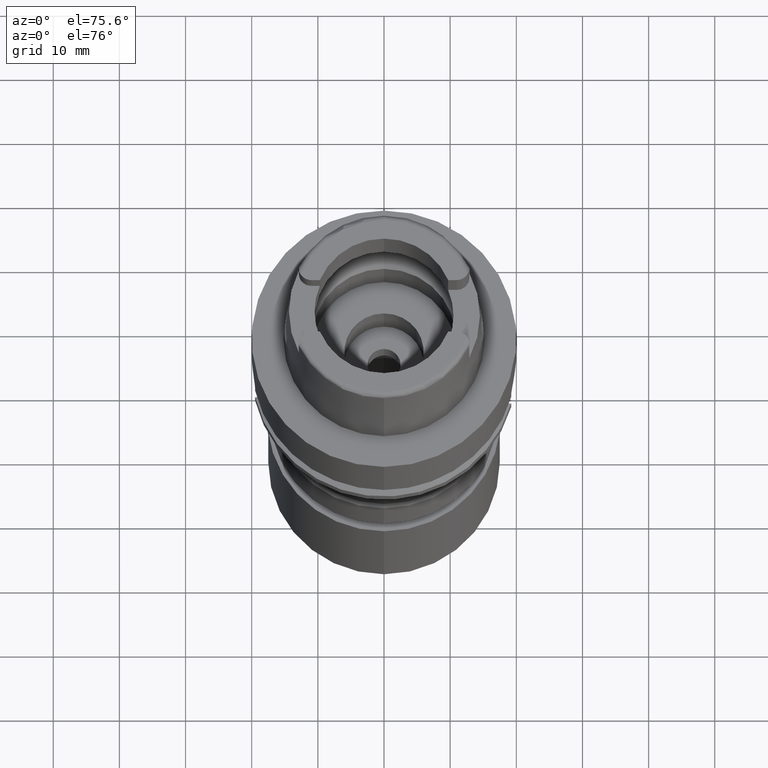
[diagram: clean part render]
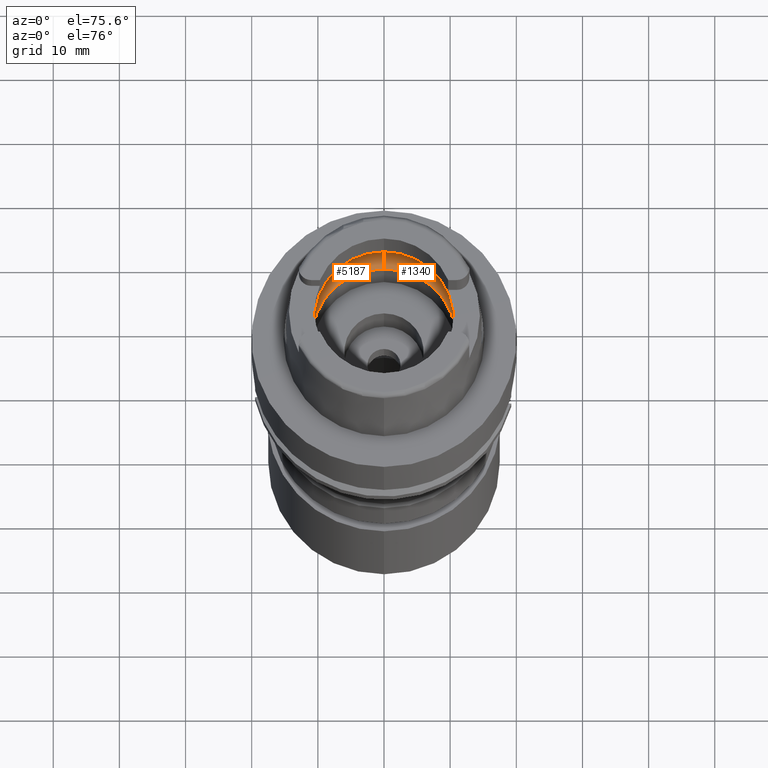
[diagram: same view with one multi-face feature highlighted, each face labeled with its STEP entity id]
A machine part, auxiliary view. The highlighted faces form ONE feature: a constant-radius fillet chain: 2 tangent blend faces with common blend radius 5 mm. The faces share edges in the B-rep.
Their STEP definitions:
[1] entity #1340 (Torus):
#114 = DIRECTION ( 'NONE',  ( 0.0000000000000000000, 0.0000000000000000000, 1.000000000000000000 ) ) ;
#136 = CARTESIAN_POINT ( 'NONE',  ( 12.74455357708000491, -0.3736595956872570956, 3.699999999999999289 ) ) ;
#221 = DIRECTION ( 'NONE',  ( 0.0000000000000000000, -0.6299999999999791322, -0.7765951326141738997 ) ) ;
#260 = CARTESIAN_POINT ( 'NONE',  ( 0.0000000000000000000, -12.75000000000000000, 3.933312163512999504 ) ) ;
#313 = AXIS2_PLACEMENT_3D ( 'NONE', #484, #3448, #2582 ) ;
#351 = VERTEX_POINT ( 'NONE', #3696 ) ;
#378 = DIRECTION ( 'NONE',  ( 0.0000000000000000000, 1.000000000000000000, 0.0000000000000000000 ) ) ;
#438 = AXIS2_PLACEMENT_3D ( 'NONE', #992, #2217, #4707 ) ;
#471 = CARTESIAN_POINT ( 'NONE',  ( 12.70998420979999999, 1.009356917307999923, 3.933312163512999504 ) ) ;
#484 = CARTESIAN_POINT ( 'NONE',  ( 0.0000000000000000000, 7.750000000000000000, 3.933312163512999504 ) ) ;
#509 = CARTESIAN_POINT ( 'NONE',  ( 12.74455357708000136, 0.0000000000000000000, 3.700000000000000178 ) ) ;
#514 = CIRCLE ( 'NONE', #2693, 10.90000000000000036 ) ;
#565 = B_SPLINE_CURVE_WITH_KNOTS ( 'NONE', 3,
 ( #471, #2939, #5381, #4981, #2884, #1236 ),
 .UNSPECIFIED., .F., .F.,
 ( 4, 1, 1, 4 ),
 ( 0.0000000000000000000, 0.3333333333333000081, 0.6666666666667000474, 1.000000000000000000 ),
 .UNSPECIFIED. ) ;
#730 = EDGE_CURVE ( 'NONE', #1047, #3075, #1219, .T. ) ;
#782 = CARTESIAN_POINT ( 'NONE',  ( 12.74455357708000136, 0.0000000000000000000, 3.700000000000000178 ) ) ;
#992 = CARTESIAN_POINT ( 'NONE',  ( 0.0000000000000000000, 0.0000000000000000000, 3.933312163512999504 ) ) ;
#1047 = VERTEX_POINT ( 'NONE', #3209 ) ;
#1219 = CIRCLE ( 'NONE', #438, 12.75000000000000533 ) ;
#1221 = ORIENTED_EDGE ( 'NONE', *, *, #3295, .F. ) ;
#1236 = CARTESIAN_POINT ( 'NONE',  ( 12.74455357708000136, 0.0000000000000000000, 3.700000000000000178 ) ) ;
#1330 = EDGE_CURVE ( 'NONE', #2439, #3584, #3808, .T. ) ;
#1340 = ADVANCED_FACE ( 'NONE', ( #3822 ), #2485, .F. ) ;
#1400 = AXIS2_PLACEMENT_3D ( 'NONE', #4125, #2960, #378 ) ;
#1567 = EDGE_CURVE ( 'NONE', #2220, #1047, #4404, .T. ) ;
#1714 = ORIENTED_EDGE ( 'NONE', *, *, #3873, .F. ) ;
#1816 = VERTEX_POINT ( 'NONE', #4571 ) ;
#1822 = CARTESIAN_POINT ( 'NONE',  ( 0.0000000000000000000, 12.75000000000000000, 3.933312163512999504 ) ) ;
#1844 = AXIS2_PLACEMENT_3D ( 'NONE', #5118, #3013, #221 ) ;
#1945 = EDGE_CURVE ( 'NONE', #351, #2220, #565, .T. ) ;
#2217 = DIRECTION ( 'NONE',  ( 0.0000000000000000000, 0.0000000000000000000, -1.000000000000000000 ) ) ;
#2220 = VERTEX_POINT ( 'NONE', #782 ) ;
#2236 = CARTESIAN_POINT ( 'NONE',  ( 0.0000000000000000000, 0.0000000000000000000, 3.933312163512999504 ) ) ;
#2439 = VERTEX_POINT ( 'NONE', #5055 ) ;
#2485 = TOROIDAL_SURFACE ( 'NONE', #2672, 7.750000000000000000, 5.000000000000000000 ) ;
#2582 = DIRECTION ( 'NONE',  ( 0.0000000000000000000, 0.6299999999999791322, -0.7765951326141738997 ) ) ;
#2672 = AXIS2_PLACEMENT_3D ( 'NONE', #2236, #114, #5144 ) ;
#2693 = AXIS2_PLACEMENT_3D ( 'NONE', #3116, #2999, #5214 ) ;
#2884 = CARTESIAN_POINT ( 'NONE',  ( 12.74455357708000136, 0.1164895916570000134, 3.700000000000000178 ) ) ;
#2905 = ORIENTED_EDGE ( 'NONE', *, *, #1945, .F. ) ;
#2939 = CARTESIAN_POINT ( 'NONE',  ( 12.71822640465999932, 0.9055698776111000825, 3.882623247365999841 ) ) ;
#2960 = DIRECTION ( 'NONE',  ( 0.0000000000000000000, 0.0000000000000000000, -1.000000000000000000 ) ) ;
#2999 = DIRECTION ( 'NONE',  ( 0.0000000000000000000, 0.0000000000000000000, 1.000000000000000000 ) ) ;
#3013 = DIRECTION ( 'NONE',  ( -1.000000000000000000, 0.0000000000000000000, 0.0000000000000000000 ) ) ;
#3075 = VERTEX_POINT ( 'NONE', #260 ) ;
#3082 = EDGE_LOOP ( 'NONE', ( #2905, #1714, #4305, #1221, #4867, #3227, #3191 ) ) ;
#3116 = CARTESIAN_POINT ( 'NONE',  ( 0.0000000000000000000, 0.0000000000000000000, 0.05033650044222000297 ) ) ;
#3191 = ORIENTED_EDGE ( 'NONE', *, *, #1567, .F. ) ;
#3209 = CARTESIAN_POINT ( 'NONE',  ( 12.70998420979999999, -1.009356917307999923, 3.933312163512999504 ) ) ;
#3227 = ORIENTED_EDGE ( 'NONE', *, *, #730, .F. ) ;
#3295 = EDGE_CURVE ( 'NONE', #1816, #2439, #514, .T. ) ;
#3305 = CIRCLE ( 'NONE', #1400, 12.75000000000000000 ) ;
#3448 = DIRECTION ( 'NONE',  ( 1.000000000000000000, 0.0000000000000000000, 0.0000000000000000000 ) ) ;
#3584 = VERTEX_POINT ( 'NONE', #1822 ) ;
#3696 = CARTESIAN_POINT ( 'NONE',  ( 12.70998420979999999, 1.009356917307999923, 3.933312163512999504 ) ) ;
#3808 = CIRCLE ( 'NONE', #313, 5.000000000000000888 ) ;
#3822 = FACE_OUTER_BOUND ( 'NONE', #3082, .T. ) ;
#3873 = EDGE_CURVE ( 'NONE', #3584, #351, #3305, .T. ) ;
#4125 = CARTESIAN_POINT ( 'NONE',  ( 0.0000000000000000000, 0.0000000000000000000, 3.933312163512999504 ) ) ;
#4164 = EDGE_CURVE ( 'NONE', #1816, #3075, #4963, .T. ) ;
#4305 = ORIENTED_EDGE ( 'NONE', *, *, #1330, .F. ) ;
#4404 = B_SPLINE_CURVE_WITH_KNOTS ( 'NONE', 3,
 ( #509, #136, #5049, #4631 ),
 .UNSPECIFIED., .F., .F.,
 ( 4, 4 ),
 ( 0.0000000000000000000, 1.000000000000000000 ),
 .UNSPECIFIED. ) ;
#4571 = CARTESIAN_POINT ( 'NONE',  ( 0.0000000000000000000, -10.90000000000000036, 0.05033650044222000297 ) ) ;
#4631 = CARTESIAN_POINT ( 'NONE',  ( 12.70998420979999999, -1.009356917307999923, 3.933312163512999504 ) ) ;
#4707 = DIRECTION ( 'NONE',  ( 0.9968615066513395462, -0.07916524841634305087, 0.0000000000000000000 ) ) ;
#4867 = ORIENTED_EDGE ( 'NONE', *, *, #4164, .T. ) ;
#4963 = CIRCLE ( 'NONE', #1844, 5.000000000000000888 ) ;
#4981 = CARTESIAN_POINT ( 'NONE',  ( 12.74221286589000002, 0.3492176365818999706, 3.717717531056000002 ) ) ;
#5049 = CARTESIAN_POINT ( 'NONE',  ( 12.73303045465333661, -0.7191549055407110425, 3.791579385672925184 ) ) ;
#5055 = CARTESIAN_POINT ( 'NONE',  ( 0.0000000000000000000, 10.90000000000000036, 0.05033650044222000297 ) ) ;
#5118 = CARTESIAN_POINT ( 'NONE',  ( 0.0000000000000000000, -7.750000000000000000, 3.933312163512999504 ) ) ;
#5144 = DIRECTION ( 'NONE',  ( 0.0000000000000000000, 1.000000000000000000, 0.0000000000000000000 ) ) ;
#5214 = DIRECTION ( 'NONE',  ( 0.0000000000000000000, -1.000000000000000000, 0.0000000000000000000 ) ) ;
#5381 = CARTESIAN_POINT ( 'NONE',  ( 12.73125793890999979, 0.6899482386720999783, 3.796703391646000014 ) ) ;
[2] entity #5187 (Torus):
#126 = ORIENTED_EDGE ( 'NONE', *, *, #4164, .F. ) ;
#221 = DIRECTION ( 'NONE',  ( 0.0000000000000000000, -0.6299999999999791322, -0.7765951326141738997 ) ) ;
#260 = CARTESIAN_POINT ( 'NONE',  ( 0.0000000000000000000, -12.75000000000000000, 3.933312163512999504 ) ) ;
#313 = AXIS2_PLACEMENT_3D ( 'NONE', #484, #3448, #2582 ) ;
#357 = ORIENTED_EDGE ( 'NONE', *, *, #4941, .F. ) ;
#484 = CARTESIAN_POINT ( 'NONE',  ( 0.0000000000000000000, 7.750000000000000000, 3.933312163512999504 ) ) ;
#516 = CARTESIAN_POINT ( 'NONE',  ( -12.74455357708000136, -0.3736595955086235987, 3.699999999999999289 ) ) ;
#621 = AXIS2_PLACEMENT_3D ( 'NONE', #3643, #791, #5283 ) ;
#791 = DIRECTION ( 'NONE',  ( 0.0000000000000000000, 0.0000000000000000000, -1.000000000000000000 ) ) ;
#811 = B_SPLINE_CURVE_WITH_KNOTS ( 'NONE', 3,
 ( #1419, #3068, #1031, #4753, #3843, #4317 ),
 .UNSPECIFIED., .F., .F.,
 ( 4, 1, 1, 4 ),
 ( 0.0000000000000000000, 0.3333333333333000081, 0.6666666666667000474, 1.000000000000000000 ),
 .UNSPECIFIED. ) ;
#831 = ORIENTED_EDGE ( 'NONE', *, *, #2478, .F. ) ;
#835 = CARTESIAN_POINT ( 'NONE',  ( -12.74455357708000136, 0.0000000000000000000, 3.700000000000000178 ) ) ;
#871 = TOROIDAL_SURFACE ( 'NONE', #1576, 7.750000000000000000, 5.000000000000000000 ) ;
#1031 = CARTESIAN_POINT ( 'NONE',  ( -12.74221285561000094, 0.3492180329648000292, 3.717717607037999805 ) ) ;
#1268 = DIRECTION ( 'NONE',  ( -0.9968615066513395462, 0.07916524841634305087, 0.0000000000000000000 ) ) ;
#1326 = DIRECTION ( 'NONE',  ( 0.0000000000000000000, 0.0000000000000000000, -1.000000000000000000 ) ) ;
#1330 = EDGE_CURVE ( 'NONE', #2439, #3584, #3808, .T. ) ;
#1341 = ORIENTED_EDGE ( 'NONE', *, *, #2673, .F. ) ;
#1419 = CARTESIAN_POINT ( 'NONE',  ( -12.74455357708000136, 0.0000000000000000000, 3.700000000000000178 ) ) ;
#1460 = VERTEX_POINT ( 'NONE', #2744 ) ;
#1576 = AXIS2_PLACEMENT_3D ( 'NONE', #4155, #3421, #5400 ) ;
#1596 = ORIENTED_EDGE ( 'NONE', *, *, #1901, .F. ) ;
#1637 = CIRCLE ( 'NONE', #3387, 12.75000000000000533 ) ;
#1794 = DIRECTION ( 'NONE',  ( 0.0000000000000000000, 1.000000000000000000, 0.0000000000000000000 ) ) ;
#1816 = VERTEX_POINT ( 'NONE', #4571 ) ;
#1822 = CARTESIAN_POINT ( 'NONE',  ( 0.0000000000000000000, 12.75000000000000000, 3.933312163512999504 ) ) ;
#1844 = AXIS2_PLACEMENT_3D ( 'NONE', #5118, #3013, #221 ) ;
#1901 = EDGE_CURVE ( 'NONE', #3764, #5052, #811, .T. ) ;
#2115 = CARTESIAN_POINT ( 'NONE',  ( 0.0000000000000000000, 0.0000000000000000000, 3.933312163512999504 ) ) ;
#2183 = CIRCLE ( 'NONE', #3844, 10.90000000000000036 ) ;
#2219 = DIRECTION ( 'NONE',  ( 0.0000000000000000000, 0.0000000000000000000, 1.000000000000000000 ) ) ;
#2317 = CARTESIAN_POINT ( 'NONE',  ( 0.0000000000000000000, 0.0000000000000000000, 0.05033650044222000297 ) ) ;
#2359 = ORIENTED_EDGE ( 'NONE', *, *, #1330, .T. ) ;
#2439 = VERTEX_POINT ( 'NONE', #5055 ) ;
#2478 = EDGE_CURVE ( 'NONE', #1460, #3764, #3705, .T. ) ;
#2582 = DIRECTION ( 'NONE',  ( 0.0000000000000000000, 0.6299999999999791322, -0.7765951326141738997 ) ) ;
#2673 = EDGE_CURVE ( 'NONE', #5052, #3584, #1637, .T. ) ;
#2744 = CARTESIAN_POINT ( 'NONE',  ( -12.70998420979999999, -1.009356917307999923, 3.933312163512999504 ) ) ;
#2748 = CARTESIAN_POINT ( 'NONE',  ( -12.74455357708000136, 0.0000000000000000000, 3.700000000000000178 ) ) ;
#2950 = CIRCLE ( 'NONE', #621, 12.75000000000000000 ) ;
#3013 = DIRECTION ( 'NONE',  ( -1.000000000000000000, 0.0000000000000000000, 0.0000000000000000000 ) ) ;
#3068 = CARTESIAN_POINT ( 'NONE',  ( -12.74455357708000136, 0.1164897671390000000, 3.700000000000000178 ) ) ;
#3075 = VERTEX_POINT ( 'NONE', #260 ) ;
#3213 = FACE_OUTER_BOUND ( 'NONE', #3333, .T. ) ;
#3333 = EDGE_LOOP ( 'NONE', ( #4584, #126, #357, #2359, #1341, #1596, #831 ) ) ;
#3387 = AXIS2_PLACEMENT_3D ( 'NONE', #2115, #1326, #1268 ) ;
#3421 = DIRECTION ( 'NONE',  ( 0.0000000000000000000, 0.0000000000000000000, 1.000000000000000000 ) ) ;
#3448 = DIRECTION ( 'NONE',  ( 1.000000000000000000, 0.0000000000000000000, 0.0000000000000000000 ) ) ;
#3584 = VERTEX_POINT ( 'NONE', #1822 ) ;
#3643 = CARTESIAN_POINT ( 'NONE',  ( 0.0000000000000000000, 0.0000000000000000000, 3.933312163512999504 ) ) ;
#3705 = B_SPLINE_CURVE_WITH_KNOTS ( 'NONE', 3,
 ( #4668, #5399, #516, #835 ),
 .UNSPECIFIED., .F., .F.,
 ( 4, 4 ),
 ( 0.0000000000000000000, 1.000000000000000000 ),
 .UNSPECIFIED. ) ;
#3764 = VERTEX_POINT ( 'NONE', #2748 ) ;
#3808 = CIRCLE ( 'NONE', #313, 5.000000000000000888 ) ;
#3843 = CARTESIAN_POINT ( 'NONE',  ( -12.71822641137999987, 0.9055697929038000193, 3.882623205995999971 ) ) ;
#3844 = AXIS2_PLACEMENT_3D ( 'NONE', #2317, #2219, #1794 ) ;
#4155 = CARTESIAN_POINT ( 'NONE',  ( 0.0000000000000000000, 0.0000000000000000000, 3.933312163512999504 ) ) ;
#4164 = EDGE_CURVE ( 'NONE', #1816, #3075, #4963, .T. ) ;
#4317 = CARTESIAN_POINT ( 'NONE',  ( -12.70998420979999999, 1.009356917307999923, 3.933312163512999504 ) ) ;
#4507 = CARTESIAN_POINT ( 'NONE',  ( -12.70998420979999999, 1.009356917307999923, 3.933312163512999504 ) ) ;
#4562 = EDGE_CURVE ( 'NONE', #3075, #1460, #2950, .T. ) ;
#4571 = CARTESIAN_POINT ( 'NONE',  ( 0.0000000000000000000, -10.90000000000000036, 0.05033650044222000297 ) ) ;
#4584 = ORIENTED_EDGE ( 'NONE', *, *, #4562, .F. ) ;
#4668 = CARTESIAN_POINT ( 'NONE',  ( -12.70998420979999999, -1.009356917307999923, 3.933312163512999504 ) ) ;
#4753 = CARTESIAN_POINT ( 'NONE',  ( -12.73125794505999941, 0.6899480291529000997, 3.796703346171000248 ) ) ;
#4941 = EDGE_CURVE ( 'NONE', #2439, #1816, #2183, .T. ) ;
#4963 = CIRCLE ( 'NONE', #1844, 5.000000000000000888 ) ;
#5052 = VERTEX_POINT ( 'NONE', #4507 ) ;
#5055 = CARTESIAN_POINT ( 'NONE',  ( 0.0000000000000000000, 10.90000000000000036, 0.05033650044222000297 ) ) ;
#5118 = CARTESIAN_POINT ( 'NONE',  ( 0.0000000000000000000, -7.750000000000000000, 3.933312163512999504 ) ) ;
#5187 = ADVANCED_FACE ( 'NONE', ( #3213 ), #871, .F. ) ;
#5283 = DIRECTION ( 'NONE',  ( 0.0000000000000000000, -1.000000000000000000, 0.0000000000000000000 ) ) ;
#5399 = CARTESIAN_POINT ( 'NONE',  ( -12.73303045465333305, -0.7191549053801982172, 3.791579385594531892 ) ) ;
#5400 = DIRECTION ( 'NONE',  ( 0.0000000000000000000, 1.000000000000000000, 0.0000000000000000000 ) ) ;